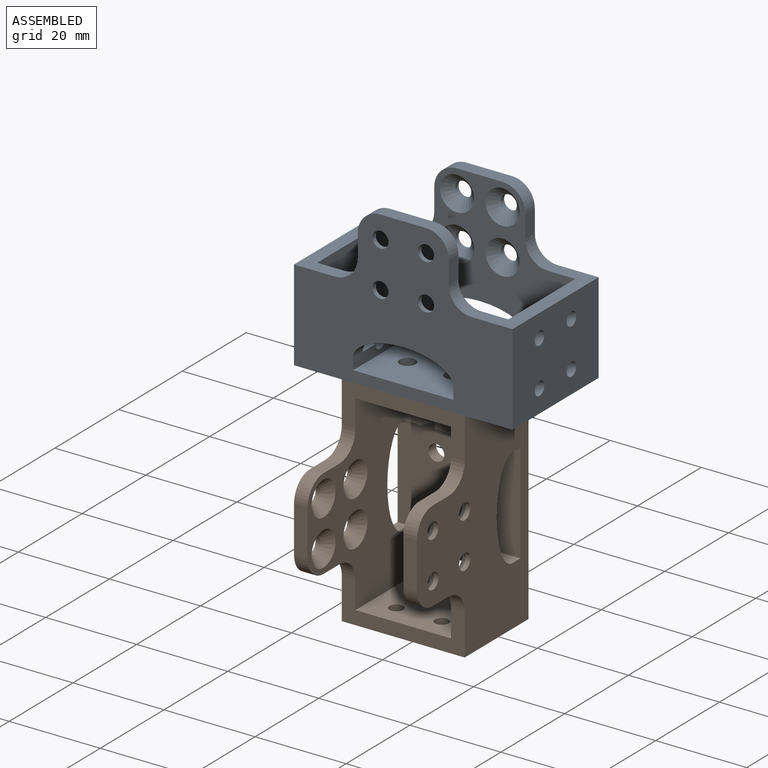
[diagram: assembled view]
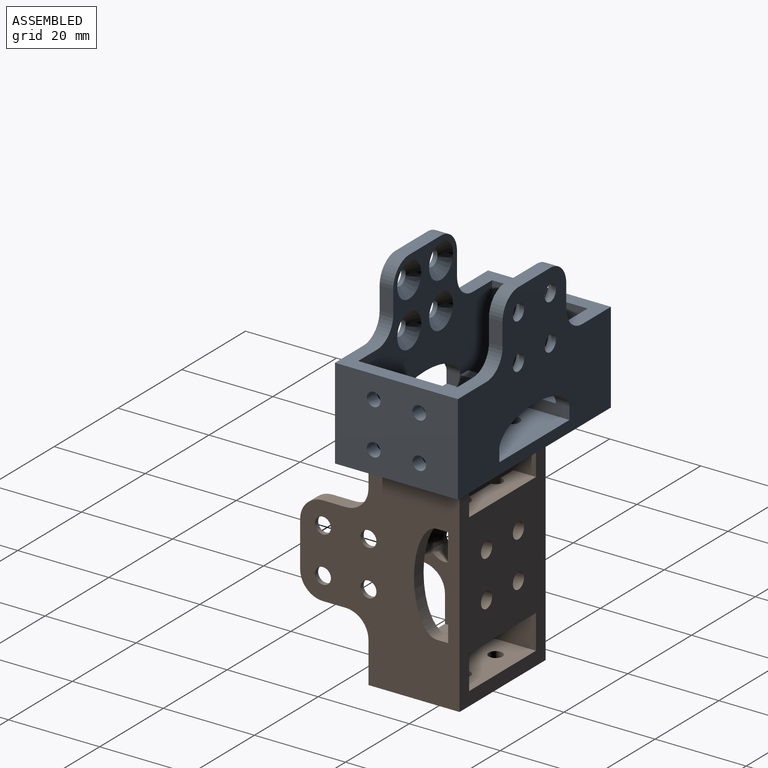
[diagram: assembled view, second angle]
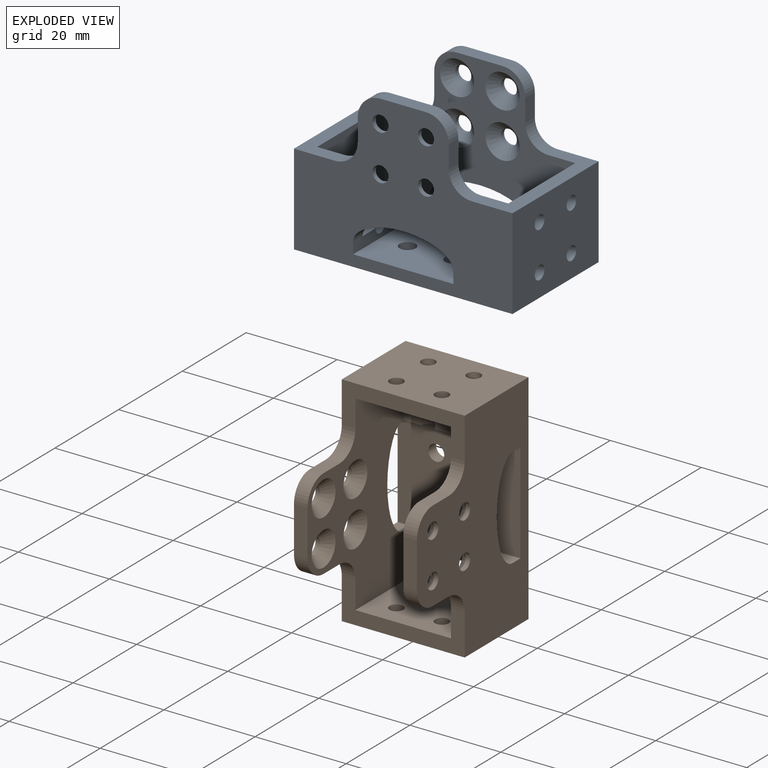
[diagram: exploded view]
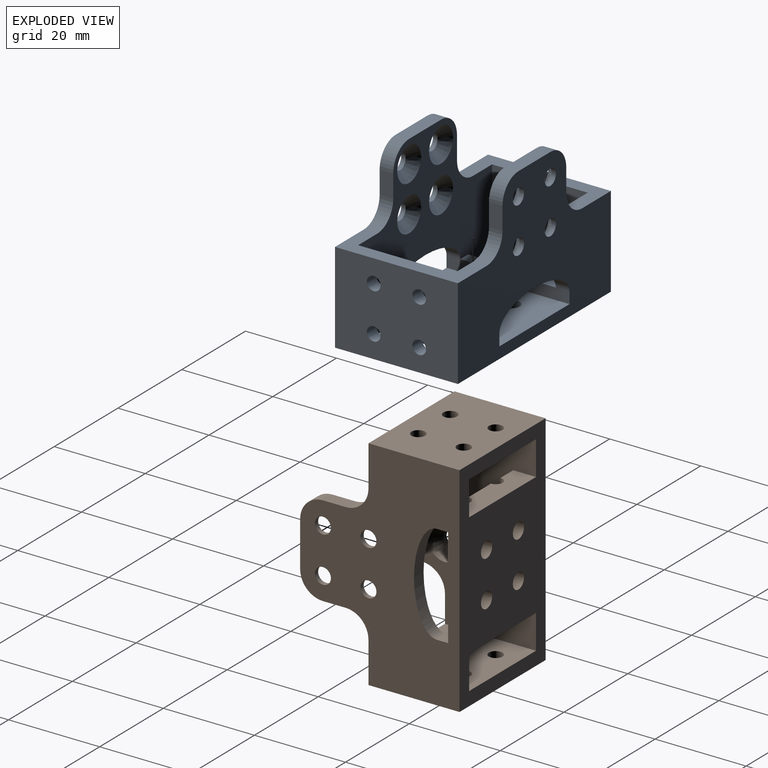
[diagram: exploded view, second angle]
ASSEMBLY  parts=2 mates=3
PART A: 70 faces, bbox 48x27x35 mm
  f0: plane 7x2.5mm, normal (0,0,1), area 17.5mm2, adj f6,f34,f63,f67
  f1: plane 4x2.5mm, normal (0,0,1), area 10mm2, adj f6,f12,f34,f67
  f2: plane 7x2.5mm, normal (0,0,1), area 17.5mm2, adj f7,f36,f62,f66
  f3: plane 4x2.5mm, normal (0,0,1), area 10mm2, adj f7,f12,f36,f66
  f4: plane 4x2.5mm, normal (0,0,1), area 10mm2, adj f6,f14,f34,f63
  f5: plane 4x2.5mm, normal (0,0,1), area 10mm2, adj f7,f14,f36,f62
  f6: plane 21x5mm, normal (1,0,0), area 97.9mm2, adj f0,f1,f4,f12,f14,f32,f63,f67
  f7: plane 21x5mm, normal (-1,0,0), area 97.9mm2, adj f2,f3,f5,f12,f14,f32,f62,f66
  f8: plane 48x35mm, normal (0,-1,0), area 1080.1mm2, adj f10,f11,f15,f16,f21,f22,f23,f25
  f9: plane 48x35mm, normal (0,1,0), area 1080.1mm2, adj f10,f11,f15,f16,f18,f19,f20,f24
  f10: plane 27x9mm, normal (0,0,1), area 117mm2, adj f8,f9,f12,f13,f14,f15,f51,f53
  f11: plane 27x9mm, normal (0,0,1), area 117mm2, adj f8,f9,f12,f14,f16,f17,f50,f52
  f12: plane 42x35mm, normal (0,-1,0), area 741.9mm2, adj f1,f3,f6,f7,f10,f11,f13,f17
  f13: plane 21x20mm, normal (-1,0,0), area 391.7mm2, adj f10,f12,f14,f32,f59,f61,f65,f69
  f14: plane 42x35mm, normal (0,1,0), area 741.9mm2, adj f4,f5,f6,f7,f10,f11,f13,f17
  f15: plane 27x20mm, normal (1,0,0), area 511.7mm2, adj f8,f9,f10,f32,f59,f61,f65,f69
  f16: plane 27x20mm, normal (-1,0,0), area 511.7mm2, adj f8,f9,f11,f32,f58,f60,f64,f68
  f17: plane 21x20mm, normal (1,0,0), area 391.7mm2, adj f11,f12,f14,f32,f58,f60,f64,f68
  f18: plane 5x3mm, normal (1,0,0), area 15mm2, adj f9,f12,f41,f53
  f19: plane 5x3mm, normal (-1,0,0), area 15mm2, adj f9,f12,f40,f52
  f20: plane 10x3mm, normal (0,0,1), area 30mm2, adj f9,f12,f40,f41
  f21: plane 5x3mm, normal (1,0,0), area 15mm2, adj f8,f14,f39,f51
  f22: plane 5x3mm, normal (-1,0,0), area 15mm2, adj f8,f14,f38,f50
  f23: plane 10x3mm, normal (0,0,1), area 30mm2, adj f8,f14,f38,f39
  f24: cylinder r=1.75mm len=3.5mm, axis (0,-1,0), area 11mm2, adj f9,f47
  f25: cylinder r=1.75mm len=3.5mm, axis (0,-1,0), area 11mm2, adj f8,f44
  f26: cylinder r=1.75mm len=3.5mm, axis (0,-1,0), area 11mm2, adj f9,f48
  f27: cylinder r=1.75mm len=3.5mm, axis (0,-1,0), area 11mm2, adj f8,f45
  f28: cylinder r=1.75mm len=3.5mm, axis (0,-1,0), area 11mm2, adj f9,f49
  f29: cylinder r=1.75mm len=3.5mm, axis (0,-1,0), area 11mm2, adj f8,f43
  f30: cylinder r=1.75mm len=3.5mm, axis (0,-1,0), area 11mm2, adj f9,f46
  f31: cylinder r=1.75mm len=3.5mm, axis (0,-1,0), area 11mm2, adj f8,f42
  f32: plane 48x27mm, normal (0,0,-1), area 942.5mm2, adj f6,f7,f8,f9,f12,f13,f14,f15
  f33: extruded ~22x5mm, area 78.1mm2, adj f9,f12,f34,f36
  f34: plane 27x2.5mm, normal (-1,0,0), area 60.4mm2, adj f0,f1,f4,f8,f9,f33,f35,f37
  f35: extruded ~22x5mm, area 78.1mm2, adj f8,f14,f34,f36
  f36: plane 27x2.5mm, normal (1,0,0), area 60.4mm2, adj f2,f3,f5,f8,f9,f33,f35,f37
  f37: plane 27x22mm, normal (0,0,1), area 555.5mm2, adj f8,f9,f34,f36,f54,f55,f56,f57
  f38: cylinder r=5mm len=5mm, axis (0,1,0), area 23.6mm2, adj f8,f14,f22,f23
  f39: cylinder r=5mm len=5mm, axis (0,-1,0), area 23.6mm2, adj f8,f14,f21,f23
  f40: cylinder r=5mm len=5mm, axis (0,1,0), area 23.6mm2, adj f9,f12,f19,f20
  f41: cylinder r=5mm len=5mm, axis (0,-1,0), area 23.6mm2, adj f9,f12,f18,f20
  f42: cone r=3.75mm half-angle=45deg, axis (0,1,0), area 48.9mm2, adj f14,f31
  f43: cone r=3.75mm half-angle=45deg, axis (0,1,0), area 48.9mm2, adj f14,f29
  f44: cone r=3.75mm half-angle=45deg, axis (0,1,0), area 48.9mm2, adj f14,f25
  f45: cone r=3.75mm half-angle=45deg, axis (0,1,0), area 48.9mm2, adj f14,f27
  f46: cone r=1.75mm half-angle=45deg, axis (0,-1,0), area 48.9mm2, adj f12,f30
  f47: cone r=1.75mm half-angle=45deg, axis (0,-1,0), area 48.9mm2, adj f12,f24
  f48: cone r=1.75mm half-angle=45deg, axis (0,-1,0), area 48.9mm2, adj f12,f26
  f49: cone r=1.75mm half-angle=45deg, axis (0,-1,0), area 48.9mm2, adj f12,f28
  f50: cylinder r=5mm len=5mm, axis (0,-1,0), area 23.6mm2, adj f8,f11,f14,f22
  f51: cylinder r=5mm len=5mm, axis (0,1,0), area 23.6mm2, adj f8,f10,f14,f21
  f52: cylinder r=5mm len=5mm, axis (0,-1,0), area 23.6mm2, adj f9,f11,f12,f19
  f53: cylinder r=5mm len=5mm, axis (0,1,0), area 23.6mm2, adj f9,f10,f12,f18
  f54: cylinder r=1.75mm len=3.5mm, axis (0,0,-1), area 27.5mm2, adj f32,f37
  f55: cylinder r=1.75mm len=3.5mm, axis (0,0,-1), area 27.5mm2, adj f32,f37
  f56: cylinder r=1.75mm len=3.5mm, axis (0,0,-1), area 27.5mm2, adj f32,f37
  f57: cylinder r=1.75mm len=3.5mm, axis (0,0,-1), area 27.5mm2, adj f32,f37
  f58: cylinder r=1.5mm len=3mm, axis (-1,0,0), area 28.3mm2, adj f16,f17
  f59: cylinder r=1.5mm len=3mm, axis (-1,0,0), area 28.3mm2, adj f13,f15
  f60: cylinder r=1.5mm len=3mm, axis (-1,0,0), area 28.3mm2, adj f16,f17
  f61: cylinder r=1.5mm len=3mm, axis (-1,0,0), area 28.3mm2, adj f13,f15
  f62: cylinder r=1.5mm len=3mm, axis (-1,0,0), area 11.8mm2, adj f2,f5,f7,f36
  f63: cylinder r=1.5mm len=3mm, axis (-1,0,0), area 11.8mm2, adj f0,f4,f6,f34
  f64: cylinder r=1.5mm len=3mm, axis (-1,0,0), area 28.3mm2, adj f16,f17
  f65: cylinder r=1.5mm len=3mm, axis (-1,0,0), area 28.3mm2, adj f13,f15
  f66: cylinder r=1.5mm len=3mm, axis (-1,0,0), area 11.8mm2, adj f2,f3,f7,f36
  f67: cylinder r=1.5mm len=3mm, axis (-1,0,0), area 11.8mm2, adj f0,f1,f6,f34
  f68: cylinder r=1.5mm len=3mm, axis (-1,0,0), area 28.3mm2, adj f16,f17
  f69: cylinder r=1.5mm len=3mm, axis (-1,0,0), area 28.3mm2, adj f13,f15
PART B: same geometry as A
PLACE A at identity fixed
PLACE B rot(axis=(0.58,-0.58,0.58),120deg) t=(0,1.5,-29)mm
MATE planar B.f10 <-> A.f8  axis (0,-1,0) through (0,-13.5,-8)mm
MATE planar B.f8 <-> A.f6  axis (1,0,0) through (13.5,-8.25,-29)mm
MATE planar B.f15 <-> A.f32  axis (0,0,1) through (0,-3.5,-5)mm
